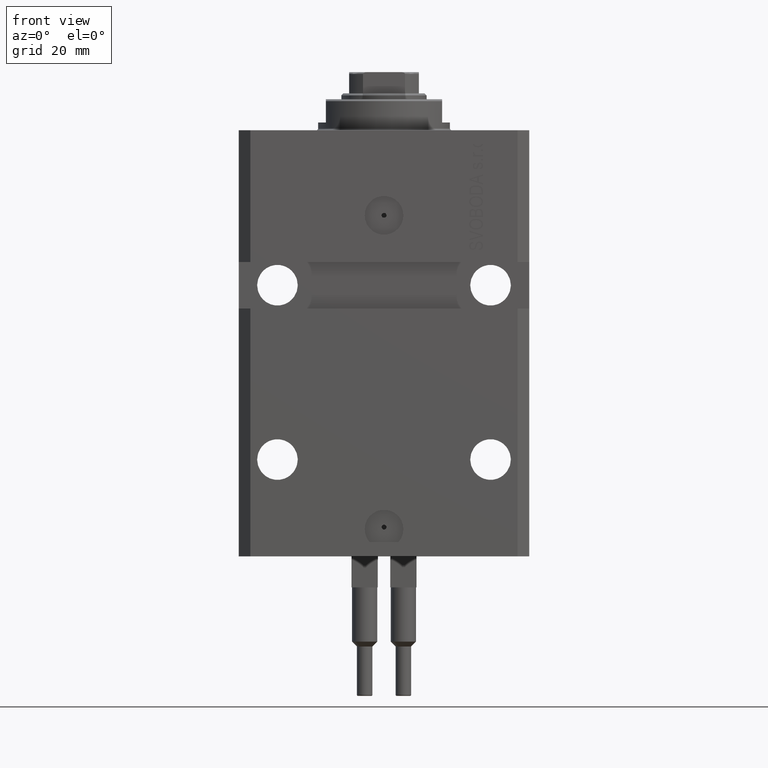
[diagram: clean part render]
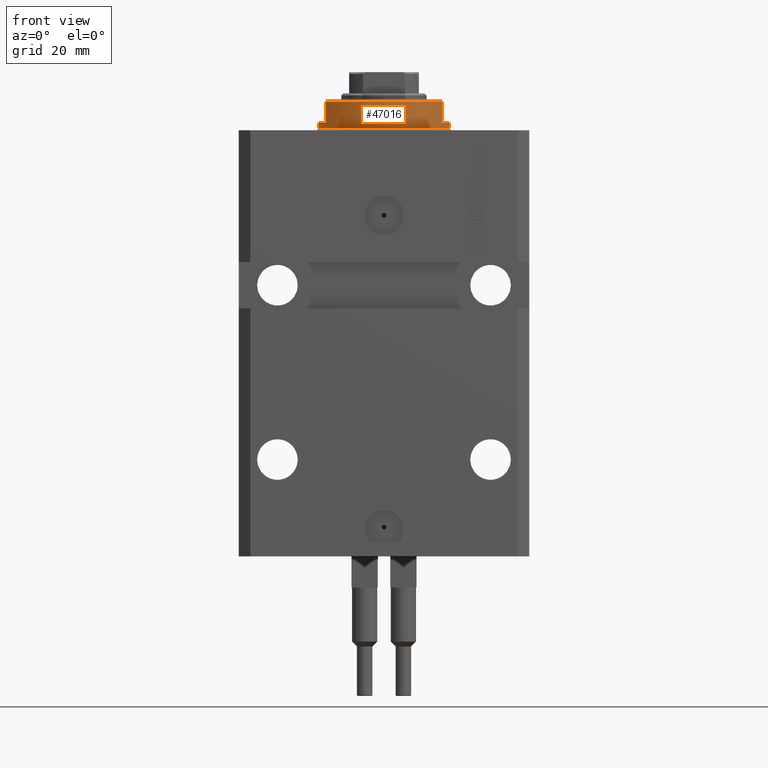
[diagram: same view with one face highlighted and labeled with its STEP entity id]
A machine part, front view. The second image highlights one B-rep face of the part: STEP entity #47016.
In plain terms, the highlighted cylindrical surface (partial cylindrical patch) has radius 17 mm, axis along (0, 0, -1).
Its self-contained STEP definition (entity closure, byte-faithful):
#1195 = EDGE_LOOP ( 'NONE', ( #42237, #1510, #45878, #29692, #42609, #29848, #14289, #36761 ) ) ;
#1491 = DIRECTION ( 'NONE',  ( -1.000000000000000000, 0.000000000000000000, 0.000000000000000000 ) ) ;
#1510 = ORIENTED_EDGE ( 'NONE', *, *, #27435, .F. ) ;
#2692 = VERTEX_POINT ( 'NONE', #41071 ) ;
#3031 = DIRECTION ( 'NONE',  ( -0.000000000000000000, -0.000000000000000000, 1.000000000000000000 ) ) ;
#3595 = LINE ( 'NONE', #18620, #31544 ) ;
#6044 = VECTOR ( 'NONE', #18223, 1000.000000000000000 ) ;
#6230 = CIRCLE ( 'NONE', #11702, 17.00000000000000000 ) ;
#7048 = EDGE_CURVE ( 'NONE', #28804, #46861, #3595, .T. ) ;
#9540 = VECTOR ( 'NONE', #28456, 1000.000000000000000 ) ;
#11381 = DIRECTION ( 'NONE',  ( -1.000000000000000000, 0.000000000000000000, 0.000000000000000000 ) ) ;
#11702 = AXIS2_PLACEMENT_3D ( 'NONE', #48540, #30031, #41627 ) ;
#11722 = CARTESIAN_POINT ( 'NONE',  ( -15.00000000000000000, -8.000000000000001776, -7.500000000000007105 ) ) ;
#12286 = EDGE_CURVE ( 'NONE', #2692, #28336, #40872, .T. ) ;
#12484 = LINE ( 'NONE', #23565, #9540 ) ;
#13401 = DIRECTION ( 'NONE',  ( 0.000000000000000000, 0.000000000000000000, 1.000000000000000000 ) ) ;
#14289 = ORIENTED_EDGE ( 'NONE', *, *, #26253, .T. ) ;
#14363 = DIRECTION ( 'NONE',  ( 1.000000000000000000, 0.000000000000000000, 0.000000000000000000 ) ) ;
#14599 = CARTESIAN_POINT ( 'NONE',  ( 0.000000000000000000, 0.000000000000000000, -8.000000000000000000 ) ) ;
#16296 = EDGE_CURVE ( 'NONE', #18049, #2692, #17861, .T. ) ;
#17861 = CIRCLE ( 'NONE', #46990, 17.00000000000000000 ) ;
#17997 = AXIS2_PLACEMENT_3D ( 'NONE', #42723, #13401, #20553 ) ;
#18049 = VERTEX_POINT ( 'NONE', #21742 ) ;
#18223 = DIRECTION ( 'NONE',  ( 0.000000000000000000, 0.000000000000000000, -1.000000000000000000 ) ) ;
#18620 = CARTESIAN_POINT ( 'NONE',  ( -17.00000000000000000, 2.081899558550500280E-15, -8.000000000000000000 ) ) ;
#19927 = EDGE_CURVE ( 'NONE', #34531, #28336, #21168, .T. ) ;
#19965 = EDGE_CURVE ( 'NONE', #46736, #46861, #6230, .T. ) ;
#19969 = CARTESIAN_POINT ( 'NONE',  ( 0.000000000000000000, 0.000000000000000000, -2.000000000000000000 ) ) ;
#20553 = DIRECTION ( 'NONE',  ( -1.000000000000000000, 0.000000000000000000, 0.000000000000000000 ) ) ;
#21168 = CIRCLE ( 'NONE', #17997, 17.00000000000000000 ) ;
#21736 = CARTESIAN_POINT ( 'NONE',  ( 0.000000000000000000, 0.000000000000000000, -2.000000000000000000 ) ) ;
#21742 = CARTESIAN_POINT ( 'NONE',  ( 17.00000000000000000, 0.000000000000000000, -2.000000000000000000 ) ) ;
#23565 = CARTESIAN_POINT ( 'NONE',  ( -15.00000000000000000, -8.000000000000001776, -8.000000000000000000 ) ) ;
#23596 = CARTESIAN_POINT ( 'NONE',  ( -14.99999999999999645, -8.000000000000003553, -2.000000000000000000 ) ) ;
#24894 = EDGE_CURVE ( 'NONE', #34356, #34531, #12484, .T. ) ;
#26253 = EDGE_CURVE ( 'NONE', #18049, #46736, #30783, .T. ) ;
#26787 = CARTESIAN_POINT ( 'NONE',  ( 15.00000000000000000, -8.000000000000001776, -8.000000000000000000 ) ) ;
#27435 = EDGE_CURVE ( 'NONE', #34356, #28804, #43469, .T. ) ;
#28336 = VERTEX_POINT ( 'NONE', #29969 ) ;
#28456 = DIRECTION ( 'NONE',  ( 0.000000000000000000, 0.000000000000000000, -1.000000000000000000 ) ) ;
#28804 = VERTEX_POINT ( 'NONE', #33007 ) ;
#29692 = ORIENTED_EDGE ( 'NONE', *, *, #19927, .T. ) ;
#29848 = ORIENTED_EDGE ( 'NONE', *, *, #16296, .F. ) ;
#29969 = CARTESIAN_POINT ( 'NONE',  ( 15.00000000000000000, -8.000000000000001776, -7.500000000000007105 ) ) ;
#30031 = DIRECTION ( 'NONE',  ( -0.000000000000000000, -0.000000000000000000, -1.000000000000000000 ) ) ;
#30783 = LINE ( 'NONE', #41633, #45022 ) ;
#30884 = CARTESIAN_POINT ( 'NONE',  ( 17.00000000000000000, 0.000000000000000000, -0.5000000000000004441 ) ) ;
#31544 = VECTOR ( 'NONE', #32914, 1000.000000000000000 ) ;
#31765 = DIRECTION ( 'NONE',  ( 0.000000000000000000, 0.000000000000000000, -1.000000000000000000 ) ) ;
#32914 = DIRECTION ( 'NONE',  ( -0.000000000000000000, -0.000000000000000000, 1.000000000000000000 ) ) ;
#33007 = CARTESIAN_POINT ( 'NONE',  ( -17.00000000000000000, 2.081899558550500280E-15, -2.000000000000000000 ) ) ;
#33556 = CYLINDRICAL_SURFACE ( 'NONE', #44723, 17.00000000000000000 ) ;
#34356 = VERTEX_POINT ( 'NONE', #23596 ) ;
#34531 = VERTEX_POINT ( 'NONE', #11722 ) ;
#36753 = DIRECTION ( 'NONE',  ( 0.000000000000000000, 0.000000000000000000, -1.000000000000000000 ) ) ;
#36761 = ORIENTED_EDGE ( 'NONE', *, *, #19965, .T. ) ;
#37930 = DIRECTION ( 'NONE',  ( -0.000000000000000000, -0.000000000000000000, 1.000000000000000000 ) ) ;
#40717 = FACE_OUTER_BOUND ( 'NONE', #1195, .T. ) ;
#40872 = LINE ( 'NONE', #26787, #6044 ) ;
#41071 = CARTESIAN_POINT ( 'NONE',  ( 14.99999999999999645, -8.000000000000003553, -2.000000000000000000 ) ) ;
#41627 = DIRECTION ( 'NONE',  ( 1.000000000000000000, 0.000000000000000000, 0.000000000000000000 ) ) ;
#41633 = CARTESIAN_POINT ( 'NONE',  ( 17.00000000000000000, 0.000000000000000000, -8.000000000000000000 ) ) ;
#42237 = ORIENTED_EDGE ( 'NONE', *, *, #7048, .F. ) ;
#42609 = ORIENTED_EDGE ( 'NONE', *, *, #12286, .F. ) ;
#42723 = CARTESIAN_POINT ( 'NONE',  ( 0.000000000000000000, 0.000000000000000000, -7.500000000000007105 ) ) ;
#43469 = CIRCLE ( 'NONE', #44167, 17.00000000000000000 ) ;
#44167 = AXIS2_PLACEMENT_3D ( 'NONE', #19969, #31765, #1491 ) ;
#44723 = AXIS2_PLACEMENT_3D ( 'NONE', #14599, #3031, #14363 ) ;
#44974 = CARTESIAN_POINT ( 'NONE',  ( -17.00000000000000000, 2.081899558550500280E-15, -0.5000000000000004441 ) ) ;
#45022 = VECTOR ( 'NONE', #37930, 1000.000000000000000 ) ;
#45878 = ORIENTED_EDGE ( 'NONE', *, *, #24894, .T. ) ;
#46736 = VERTEX_POINT ( 'NONE', #30884 ) ;
#46861 = VERTEX_POINT ( 'NONE', #44974 ) ;
#46990 = AXIS2_PLACEMENT_3D ( 'NONE', #21736, #36753, #11381 ) ;
#47016 = ADVANCED_FACE ( 'NONE', ( #40717 ), #33556, .T. ) ;
#48540 = CARTESIAN_POINT ( 'NONE',  ( 0.000000000000000000, 0.000000000000000000, -0.5000000000000004441 ) ) ;